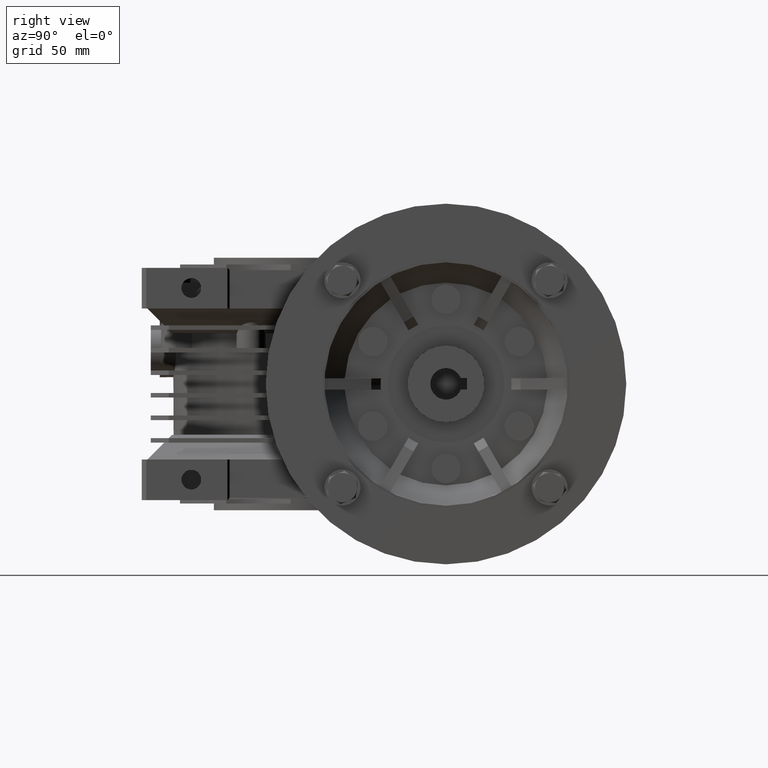
[diagram: clean part render]
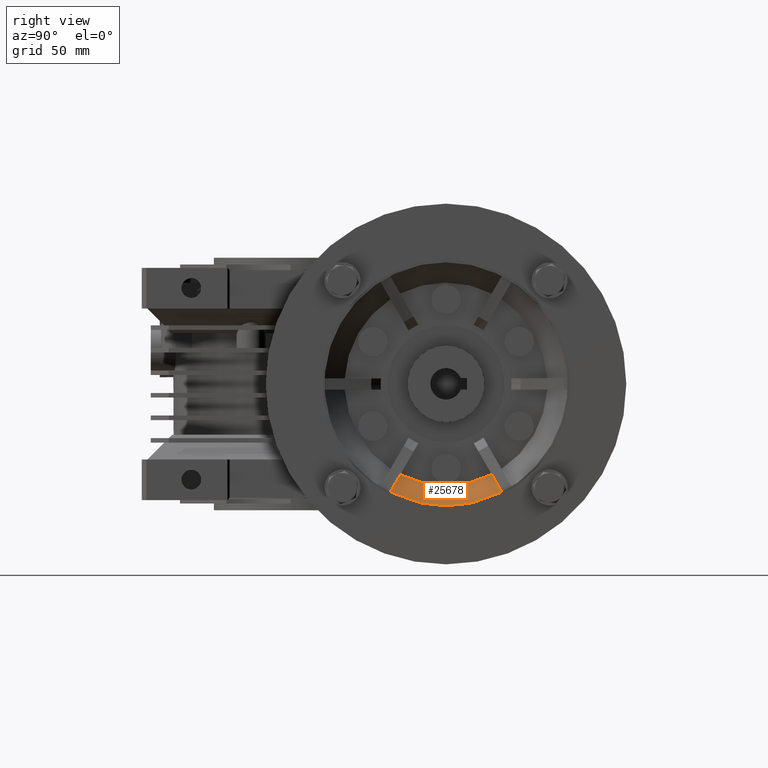
[diagram: same view with one face highlighted and labeled with its STEP entity id]
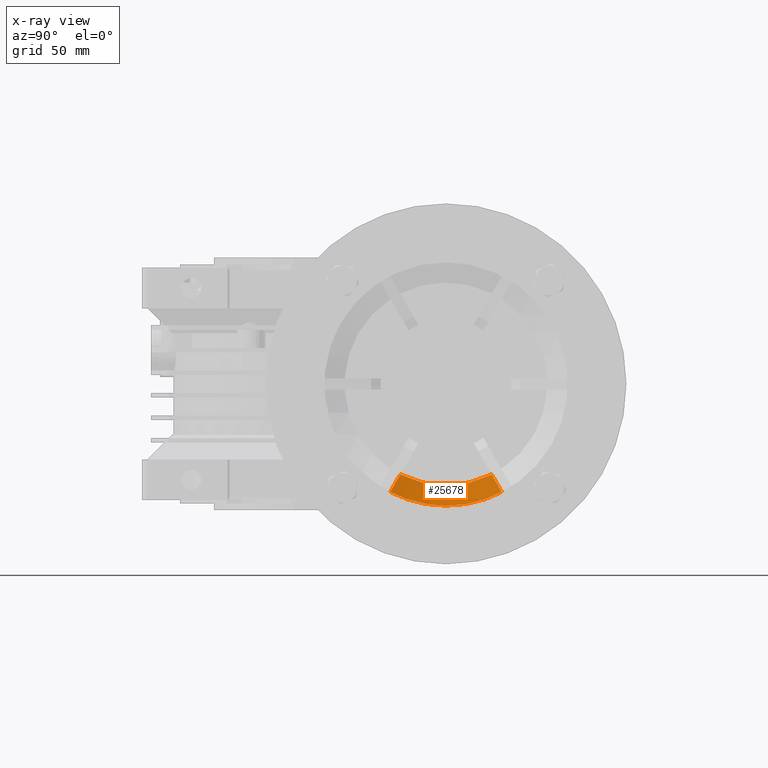
[diagram: x-ray of the same camera — body ghosted, the highlighted face saturated]
A machine part, right view. The second image highlights one B-rep face of the part: STEP entity #25678.
The next image is the same camera in x-ray: the body ghosted, the highlighted face saturated — about 0% of this face is hidden behind the body in this view.
In plain terms, the highlighted conical surface has half-angle 45 deg.
Its self-contained STEP definition (entity closure, byte-faithful):
#82 = EDGE_LOOP ( 'NONE', ( #22239, #21833, #1855, #5185, #27692 ) ) ;
#605 = VERTEX_POINT ( 'NONE', #42082 ) ;
#1158 = CIRCLE ( 'NONE', #46993, 45.00000000000000000 ) ;
#1574 = EDGE_CURVE ( 'NONE', #30866, #25296, #1158, .T. ) ;
#1855 = ORIENTED_EDGE ( 'NONE', *, *, #39895, .F. ) ;
#3785 = CARTESIAN_POINT ( 'NONE',  ( 89.00000000000000000, 87.80598578417969691, -47.96522771003049712 ) ) ;
#4593 = DIRECTION ( 'NONE',  ( 1.000000000000000000, 0.000000000000000000, 0.000000000000000000 ) ) ;
#5185 = ORIENTED_EDGE ( 'NONE', *, *, #1574, .F. ) ;
#6702 = CARTESIAN_POINT ( 'NONE',  ( 89.00000000000000000, 87.80598578417969691, -47.96522771003049712 ) ) ;
#9415 = DIRECTION ( 'NONE',  ( 1.000000000000000000, 0.000000000000000000, 0.000000000000000000 ) ) ;
#10895 = DIRECTION ( 'NONE',  ( 0.000000000000000000, 1.000000000000000000, 0.000000000000000000 ) ) ;
#11185 = EDGE_CURVE ( 'NONE', #14850, #605, #27503, .T. ) ;
#13918 = B_SPLINE_CURVE_WITH_KNOTS ( 'NONE', 3,
 ( #20196, #27228, #35299, #45977 ),
 .UNSPECIFIED., .F., .F.,
 ( 4, 4 ),
 ( 3.469446951953614959E-18, 0.01273612480513455943 ),
 .UNSPECIFIED. ) ;
#14850 = VERTEX_POINT ( 'NONE', #30937 ) ;
#15411 = CARTESIAN_POINT ( 'NONE',  ( 80.00000000000000000, 42.69981256494680366, -40.16095604068344471 ) ) ;
#18373 = DIRECTION ( 'NONE',  ( 1.000000000000000000, 3.854941057726239700E-17, 0.000000000000000000 ) ) ;
#18964 = CARTESIAN_POINT ( 'NONE',  ( 80.00000000000000000, 83.30018743505320344, -40.16095604068344471 ) ) ;
#19628 = VERTEX_POINT ( 'NONE', #6702 ) ;
#20151 = EDGE_CURVE ( 'NONE', #605, #19628, #23248, .T. ) ;
#20196 = CARTESIAN_POINT ( 'NONE',  ( 89.00000000000000000, 38.19401421582034573, -47.96522771003049712 ) ) ;
#21680 = CARTESIAN_POINT ( 'NONE',  ( 89.00000000000000000, 63.00000000000000000, 0.000000000000000000 ) ) ;
#21833 = ORIENTED_EDGE ( 'NONE', *, *, #20151, .T. ) ;
#22239 = ORIENTED_EDGE ( 'NONE', *, *, #11185, .T. ) ;
#23248 = CIRCLE ( 'NONE', #43482, 54.00000000000000000 ) ;
#25296 = VERTEX_POINT ( 'NONE', #39763 ) ;
#25678 = ADVANCED_FACE ( 'NONE', ( #47660 ), #30656, .F. ) ;
#27228 = CARTESIAN_POINT ( 'NONE',  ( 85.99967729883005063, 39.69578583860050003, -45.36408295801009416 ) ) ;
#27503 = CIRCLE ( 'NONE', #32980, 54.00000000000000000 ) ;
#27692 = ORIENTED_EDGE ( 'NONE', *, *, #38615, .F. ) ;
#29156 = CARTESIAN_POINT ( 'NONE',  ( 85.99967729883005063, 86.30421416139949997, -45.36408295801009416 ) ) ;
#29554 = DIRECTION ( 'NONE',  ( 0.000000000000000000, 1.000000000000000000, 0.000000000000000000 ) ) ;
#30656 = CONICAL_SURFACE ( 'NONE', #36904, 53.99999999999999289, 0.7853981633974490562 ) ;
#30866 = VERTEX_POINT ( 'NONE', #15411 ) ;
#30898 = CARTESIAN_POINT ( 'NONE',  ( 89.00000000000000000, 63.00000000000000000, 0.000000000000000000 ) ) ;
#30937 = CARTESIAN_POINT ( 'NONE',  ( 89.00000000000000000, 38.19401421582034573, -47.96522771003049712 ) ) ;
#32980 = AXIS2_PLACEMENT_3D ( 'NONE', #42797, #9415, #47143 ) ;
#35299 = CARTESIAN_POINT ( 'NONE',  ( 82.99961262144289265, 41.19768636682069740, -42.76271493521819878 ) ) ;
#36832 = B_SPLINE_CURVE_WITH_KNOTS ( 'NONE', 3,
 ( #18964, #37409, #29156, #3785 ),
 .UNSPECIFIED., .F., .F.,
 ( 4, 4 ),
 ( 0.000000000000000000, 0.01273612480513461841 ),
 .UNSPECIFIED. ) ;
#36904 = AXIS2_PLACEMENT_3D ( 'NONE', #21680, #44039, #10895 ) ;
#37409 = CARTESIAN_POINT ( 'NONE',  ( 82.99961262144289265, 84.80231363317936655, -42.76271493521819878 ) ) ;
#38615 = EDGE_CURVE ( 'NONE', #14850, #30866, #13918, .T. ) ;
#39763 = CARTESIAN_POINT ( 'NONE',  ( 80.00000000000000000, 83.30018743505320344, -40.16095604068344471 ) ) ;
#39895 = EDGE_CURVE ( 'NONE', #25296, #19628, #36832, .T. ) ;
#41604 = DIRECTION ( 'NONE',  ( 0.000000000000000000, 3.597944987211155163E-15, 1.000000000000000000 ) ) ;
#42082 = CARTESIAN_POINT ( 'NONE',  ( 89.00000000000000000, 63.00000000000000000, -54.00000000000000000 ) ) ;
#42797 = CARTESIAN_POINT ( 'NONE',  ( 89.00000000000000000, 63.00000000000000000, 0.000000000000000000 ) ) ;
#43053 = CARTESIAN_POINT ( 'NONE',  ( 80.00000000000000000, 63.00000000000000000, 0.000000000000000000 ) ) ;
#43482 = AXIS2_PLACEMENT_3D ( 'NONE', #30898, #4593, #41604 ) ;
#44039 = DIRECTION ( 'NONE',  ( 1.000000000000000000, 6.424901762877058565E-17, 0.000000000000000000 ) ) ;
#45977 = CARTESIAN_POINT ( 'NONE',  ( 80.00000000000000000, 42.69981256494680366, -40.16095604068344471 ) ) ;
#46993 = AXIS2_PLACEMENT_3D ( 'NONE', #43053, #18373, #29554 ) ;
#47143 = DIRECTION ( 'NONE',  ( 0.000000000000000000, 3.597944987211155163E-15, 1.000000000000000000 ) ) ;
#47660 = FACE_OUTER_BOUND ( 'NONE', #82, .T. ) ;